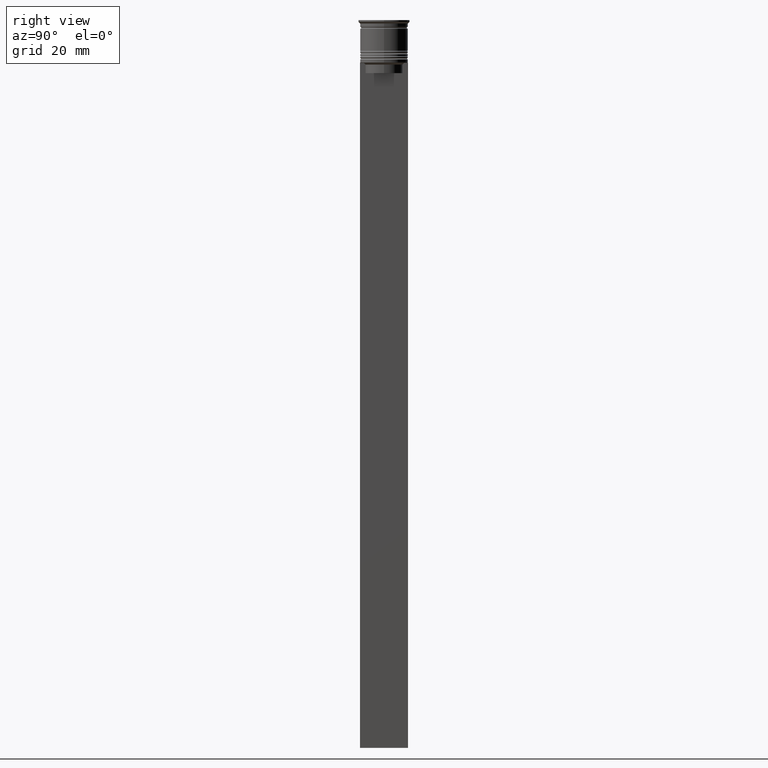
[diagram: clean part render]
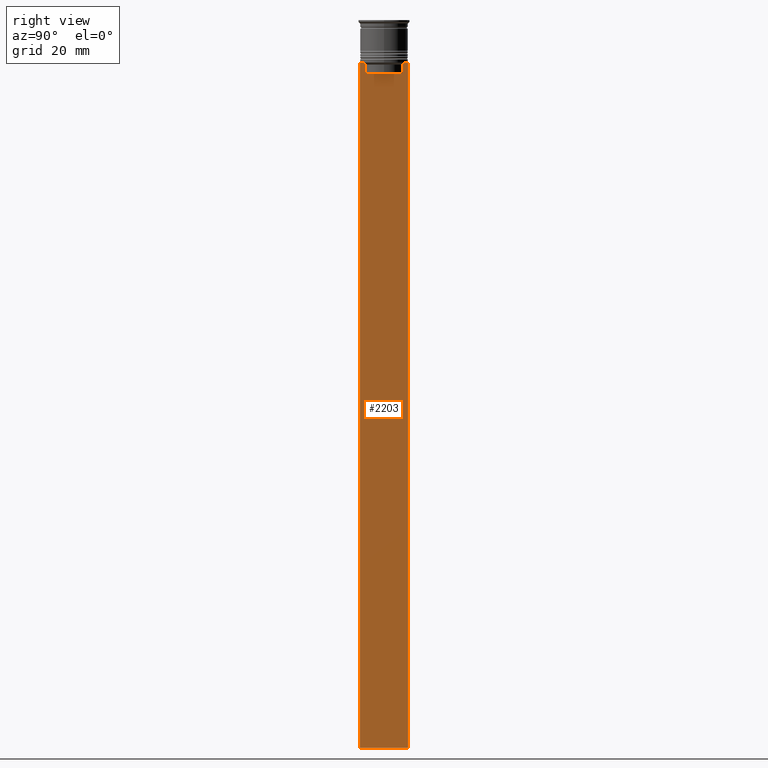
[diagram: same view with one face highlighted and labeled with its STEP entity id]
A machine part, right view. The second image highlights one B-rep face of the part: STEP entity #2203.
In plain terms, the highlighted planar face has unit normal (-1, 0, 0).
Its self-contained STEP definition (entity closure, byte-faithful):
#1 = VERTEX_POINT ( 'NONE', #1505 ) ;
#7 = CARTESIAN_POINT ( 'NONE',  ( 0.5000000000000000000, -5.711478856069293286, -12.66669469529570335 ) ) ;
#47 = CARTESIAN_POINT ( 'NONE',  ( 0.5000000000000000000, -5.376802023508029826, -15.50000000000000000 ) ) ;
#111 = VECTOR ( 'NONE', #1891, 1000.000000000000000 ) ;
#168 = CARTESIAN_POINT ( 'NONE',  ( 0.5000000000000000000, -5.376802023508029826, 0.000000000000000000 ) ) ;
#177 = ORIENTED_EDGE ( 'NONE', *, *, #491, .T. ) ;
#188 = VERTEX_POINT ( 'NONE', #1125 ) ;
#191 = DIRECTION ( 'NONE',  ( 0.000000000000000000, 0.000000000000000000, 1.000000000000000000 ) ) ;
#204 = VECTOR ( 'NONE', #747, 1000.000000000000000 ) ;
#272 = ORIENTED_EDGE ( 'NONE', *, *, #1270, .T. ) ;
#300 = CARTESIAN_POINT ( 'NONE',  ( 0.5000000000000000000, 5.878775382679629402, -12.50000000000000000 ) ) ;
#325 = EDGE_CURVE ( 'NONE', #808, #2324, #2490, .T. ) ;
#422 = EDGE_CURVE ( 'NONE', #1, #1735, #2159, .T. ) ;
#425 = CARTESIAN_POINT ( 'NONE',  ( 0.5000000000000000000, 7.000000000000002665, -12.50000000000000000 ) ) ;
#482 = CARTESIAN_POINT ( 'NONE',  ( 0.5000000000000000000, -6.999999999999997335, 1.535668847618198329 ) ) ;
#491 = EDGE_CURVE ( 'NONE', #1450, #1135, #2320, .T. ) ;
#526 = DIRECTION ( 'NONE',  ( 0.000000000000000000, -1.000000000000000000, 0.000000000000000000 ) ) ;
#558 = VECTOR ( 'NONE', #1159, 1000.000000000000000 ) ;
#590 = CARTESIAN_POINT ( 'NONE',  ( 0.5000000000000000000, -6.999999999999997335, -212.5000000000000284 ) ) ;
#747 = DIRECTION ( 'NONE',  ( 0.000000000000000000, -1.000000000000000000, 0.000000000000000000 ) ) ;
#758 = ORIENTED_EDGE ( 'NONE', *, *, #963, .T. ) ;
#800 = VECTOR ( 'NONE', #1585, 1000.000000000000000 ) ;
#801 = CARTESIAN_POINT ( 'NONE',  ( 0.5000000000000000000, -5.376802023508029826, -13.00000000000000178 ) ) ;
#808 = VERTEX_POINT ( 'NONE', #1496 ) ;
#833 = VERTEX_POINT ( 'NONE', #425 ) ;
#844 = VECTOR ( 'NONE', #1715, 1000.000000000000000 ) ;
#883 = EDGE_CURVE ( 'NONE', #833, #1135, #1013, .T. ) ;
#898 = CARTESIAN_POINT ( 'NONE',  ( 0.5000000000000000000, 5.376802023508029826, 0.000000000000000000 ) ) ;
#963 = EDGE_CURVE ( 'NONE', #1735, #1450, #1623, .T. ) ;
#980 = EDGE_CURVE ( 'NONE', #188, #1986, #1232, .T. ) ;
#1007 = ORIENTED_EDGE ( 'NONE', *, *, #2174, .T. ) ;
#1011 = VERTEX_POINT ( 'NONE', #1032 ) ;
#1013 = LINE ( 'NONE', #1756, #2332 ) ;
#1032 = CARTESIAN_POINT ( 'NONE',  ( 0.5000000000000000000, -5.376802023508029826, -13.00000000000000178 ) ) ;
#1051 = CARTESIAN_POINT ( 'NONE',  ( 0.5000000000000000000, 5.711478846560141598, -12.66669470477064685 ) ) ;
#1080 = AXIS2_PLACEMENT_3D ( 'NONE', #1138, #1910, #191 ) ;
#1109 = LINE ( 'NONE', #168, #844 ) ;
#1125 = CARTESIAN_POINT ( 'NONE',  ( 0.5000000000000000000, 6.881860213634102053, -12.50000000000000000 ) ) ;
#1135 = VERTEX_POINT ( 'NONE', #2451 ) ;
#1138 = CARTESIAN_POINT ( 'NONE',  ( 0.5000000000000000000, -6.999999999999997335, 1.535668847618198329 ) ) ;
#1159 = DIRECTION ( 'NONE',  ( 0.000000000000000000, -1.000000000000000000, 0.000000000000000000 ) ) ;
#1163 = ORIENTED_EDGE ( 'NONE', *, *, #2090, .T. ) ;
#1199 = ORIENTED_EDGE ( 'NONE', *, *, #2055, .T. ) ;
#1230 = ORIENTED_EDGE ( 'NONE', *, *, #1924, .T. ) ;
#1231 = VECTOR ( 'NONE', #1354, 1000.000000000000000 ) ;
#1232 = LINE ( 'NONE', #1460, #1805 ) ;
#1248 = ORIENTED_EDGE ( 'NONE', *, *, #883, .F. ) ;
#1270 = EDGE_CURVE ( 'NONE', #1339, #1, #2345, .T. ) ;
#1333 = ORIENTED_EDGE ( 'NONE', *, *, #325, .T. ) ;
#1339 = VERTEX_POINT ( 'NONE', #1967 ) ;
#1352 = FACE_OUTER_BOUND ( 'NONE', #1928, .T. ) ;
#1354 = DIRECTION ( 'NONE',  ( 0.000000000000000000, 1.000000000000000000, 0.000000000000000000 ) ) ;
#1357 = VERTEX_POINT ( 'NONE', #47 ) ;
#1400 = CARTESIAN_POINT ( 'NONE',  ( 0.5000000000000000000, -6.999999999999997335, -12.50000000000000000 ) ) ;
#1419 = ORIENTED_EDGE ( 'NONE', *, *, #422, .T. ) ;
#1450 = VERTEX_POINT ( 'NONE', #1458 ) ;
#1458 = CARTESIAN_POINT ( 'NONE',  ( 0.5000000000000000000, -6.999999999999997335, -212.5000000000000284 ) ) ;
#1460 = CARTESIAN_POINT ( 'NONE',  ( 0.5000000000000000000, -6.999999999999997335, -12.50000000000000000 ) ) ;
#1483 = LINE ( 'NONE', #2258, #1579 ) ;
#1496 = CARTESIAN_POINT ( 'NONE',  ( 0.5000000000000000000, 5.376802023508029826, -13.00000000000000178 ) ) ;
#1505 = CARTESIAN_POINT ( 'NONE',  ( 0.5000000000000000000, -6.881860213634102053, -12.50000000000000000 ) ) ;
#1543 = CARTESIAN_POINT ( 'NONE',  ( 0.5000000000000000000, -6.999999999999997335, -12.50000000000000000 ) ) ;
#1579 = VECTOR ( 'NONE', #526, 1000.000000000000000 ) ;
#1581 = CARTESIAN_POINT ( 'NONE',  ( 0.5000000000000000000, -5.878775382679629402, -12.50000000000000000 ) ) ;
#1585 = DIRECTION ( 'NONE',  ( 0.000000000000000000, -1.000000000000000000, 0.000000000000000000 ) ) ;
#1595 = PLANE ( 'NONE',  #1080 ) ;
#1623 = LINE ( 'NONE', #482, #1642 ) ;
#1642 = VECTOR ( 'NONE', #2440, 1000.000000000000000 ) ;
#1715 = DIRECTION ( 'NONE',  ( -0.000000000000000000, -0.000000000000000000, 1.000000000000000000 ) ) ;
#1735 = VERTEX_POINT ( 'NONE', #2321 ) ;
#1736 = ORIENTED_EDGE ( 'NONE', *, *, #1977, .T. ) ;
#1756 = CARTESIAN_POINT ( 'NONE',  ( 0.5000000000000000000, 7.000000000000002665, 1.535668847618198329 ) ) ;
#1797 = ORIENTED_EDGE ( 'NONE', *, *, #980, .T. ) ;
#1805 = VECTOR ( 'NONE', #1856, 1000.000000000000000 ) ;
#1829 = CARTESIAN_POINT ( 'NONE',  ( 0.5000000000000000000, 5.544156989057553275, -12.83336397825725861 ) ) ;
#1851 = CARTESIAN_POINT ( 'NONE',  ( 0.5000000000000000000, 5.400000000000003908, -15.50000000000000000 ) ) ;
#1856 = DIRECTION ( 'NONE',  ( 0.000000000000000000, -1.000000000000000000, 0.000000000000000000 ) ) ;
#1891 = DIRECTION ( 'NONE',  ( 0.000000000000000000, 0.000000000000000000, -1.000000000000000000 ) ) ;
#1910 = DIRECTION ( 'NONE',  ( -1.000000000000000000, 0.000000000000000000, 0.000000000000000000 ) ) ;
#1924 = EDGE_CURVE ( 'NONE', #1986, #808, #2323, .T. ) ;
#1928 = EDGE_LOOP ( 'NONE', ( #1797, #1230, #1333, #1736, #1199, #1007, #272, #1419, #758, #177, #1248, #1163 ) ) ;
#1967 = CARTESIAN_POINT ( 'NONE',  ( 0.5000000000000000000, -5.878775382679629402, -12.50000000000000000 ) ) ;
#1977 = EDGE_CURVE ( 'NONE', #2324, #1357, #2475, .T. ) ;
#1978 = CARTESIAN_POINT ( 'NONE',  ( 0.5000000000000000000, 5.376802023508029826, -15.50000000000000000 ) ) ;
#1986 = VERTEX_POINT ( 'NONE', #2086 ) ;
#2055 = EDGE_CURVE ( 'NONE', #1357, #1011, #1109, .T. ) ;
#2086 = CARTESIAN_POINT ( 'NONE',  ( 0.5000000000000000000, 5.878775382679629402, -12.50000000000000000 ) ) ;
#2090 = EDGE_CURVE ( 'NONE', #833, #188, #1483, .T. ) ;
#2159 = LINE ( 'NONE', #1543, #800 ) ;
#2174 = EDGE_CURVE ( 'NONE', #1011, #1339, #2400, .T. ) ;
#2190 = CARTESIAN_POINT ( 'NONE',  ( 0.5000000000000000000, 5.376802023508029826, -13.00000000000000178 ) ) ;
#2203 = ADVANCED_FACE ( 'NONE', ( #1352 ), #1595, .F. ) ;
#2258 = CARTESIAN_POINT ( 'NONE',  ( 0.5000000000000000000, -6.999999999999997335, -12.50000000000000000 ) ) ;
#2295 = DIRECTION ( 'NONE',  ( 0.000000000000000000, 0.000000000000000000, -1.000000000000000000 ) ) ;
#2308 = CARTESIAN_POINT ( 'NONE',  ( 0.5000000000000000000, -5.544156999454441959, -12.83336396790503642 ) ) ;
#2320 = LINE ( 'NONE', #590, #1231 ) ;
#2321 = CARTESIAN_POINT ( 'NONE',  ( 0.5000000000000000000, -6.999999999999997335, -12.50000000000000000 ) ) ;
#2323 = B_SPLINE_CURVE_WITH_KNOTS ( 'NONE', 3,
 ( #300, #1051, #1829, #2190 ),
 .UNSPECIFIED., .F., .F.,
 ( 4, 4 ),
 ( 0.01003009312103698807, 0.01073859663834952557 ),
 .UNSPECIFIED. ) ;
#2324 = VERTEX_POINT ( 'NONE', #1978 ) ;
#2332 = VECTOR ( 'NONE', #2295, 1000.000000000000000 ) ;
#2345 = LINE ( 'NONE', #1400, #558 ) ;
#2400 = B_SPLINE_CURVE_WITH_KNOTS ( 'NONE', 3,
 ( #801, #2308, #7, #1581 ),
 .UNSPECIFIED., .F., .F.,
 ( 4, 4 ),
 ( 0.02539176325380714666, 0.02610162431828674801 ),
 .UNSPECIFIED. ) ;
#2440 = DIRECTION ( 'NONE',  ( 0.000000000000000000, 0.000000000000000000, -1.000000000000000000 ) ) ;
#2451 = CARTESIAN_POINT ( 'NONE',  ( 0.5000000000000000000, 7.000000000000002665, -212.5000000000000284 ) ) ;
#2475 = LINE ( 'NONE', #1851, #204 ) ;
#2490 = LINE ( 'NONE', #898, #111 ) ;